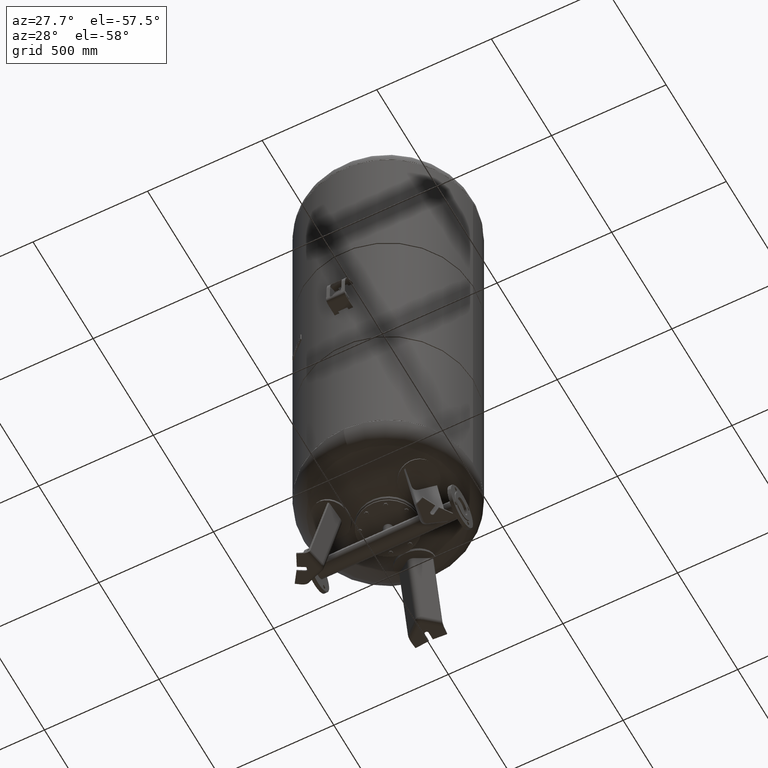
[diagram: clean part render]
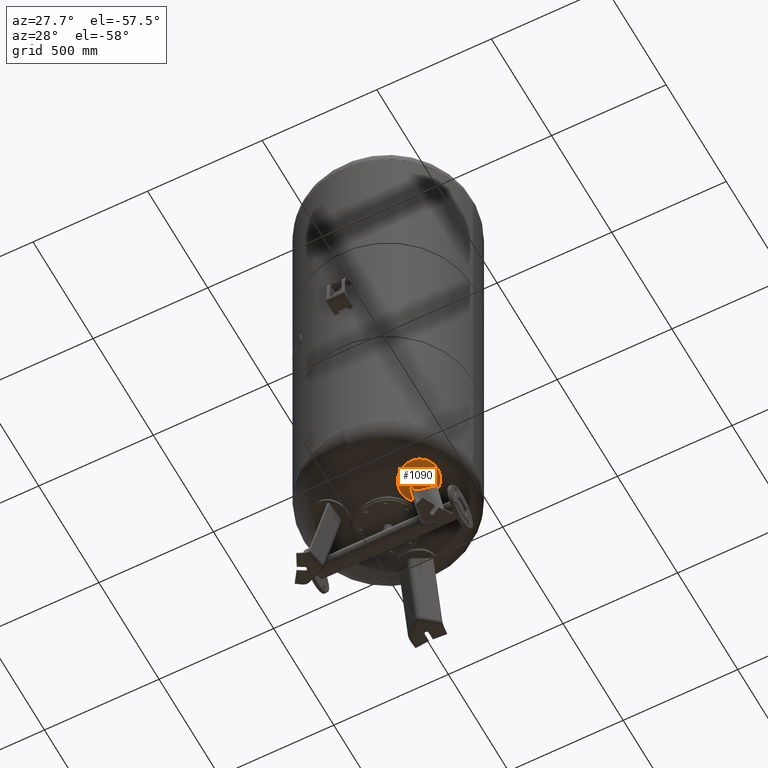
[diagram: same view with one face highlighted and labeled with its STEP entity id]
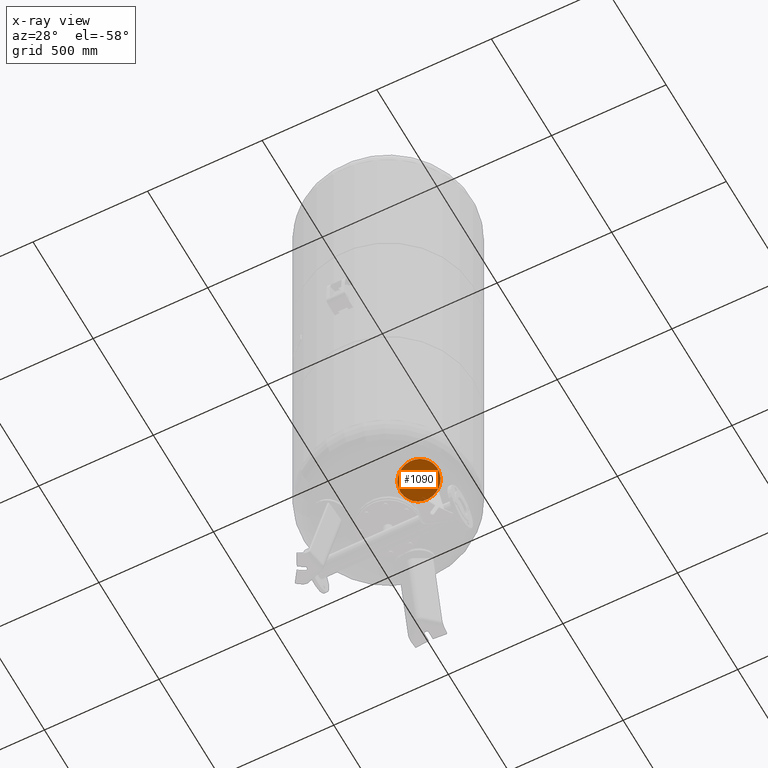
[diagram: x-ray of the same camera — body ghosted, the highlighted face saturated]
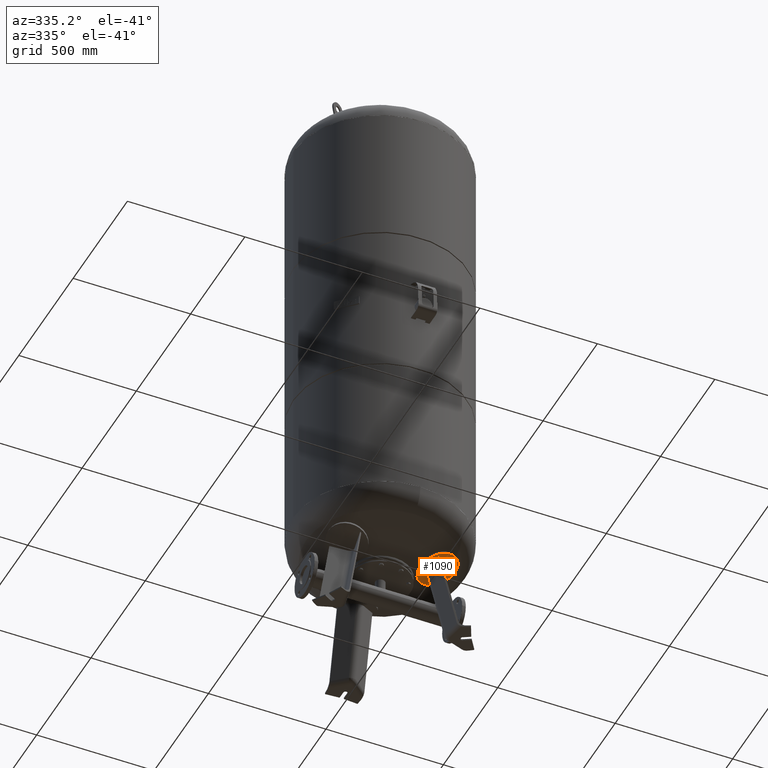
[diagram: same view with one face highlighted and labeled with its STEP entity id]
A machine part, auxiliary view. The second image highlights one B-rep face of the part: STEP entity #1090.
The next image is the same camera in x-ray: the body ghosted, the highlighted face saturated — about 1% of this face is hidden behind the body in this view.
A second angle (auxiliary view) of the same face is appended — the face is thin or edge-on in the first view.
In plain terms, the highlighted spherical surface has radius 594 mm.
Its self-contained STEP definition (entity closure, byte-faithful):
#998=CARTESIAN_POINT('',(261.389877286085610,-150.913516195399100,393.757372581269070));
#999=VERTEX_POINT('',#998);
#1008=CARTESIAN_POINT('',(123.944135096262780,-71.559179943136854,332.834821158567990));
#1009=VERTEX_POINT('',#1008);
#1010=CARTESIAN_POINT('',(192.667006191174180,-111.236348069267990,363.296096869918470));
#1011=DIRECTION('',(0.310355748208370,-0.179183974772650,-0.933580426497202));
#1012=DIRECTION('',(0.808504365822487,-0.466790213248602,0.358367949545300));
#1013=AXIS2_PLACEMENT_3D('',#1010,#1011,#1012);
#1014=CIRCLE('',#1013,85.0);
#1015=EDGE_CURVE('',#1009,#999,#1014,.T.);
#1071=CARTESIAN_POINT('',(192.667006191174180,-111.236348069267990,363.296096869918470));
#1072=DIRECTION('',(0.310355748208370,-0.179183974772650,-0.933580426497202));
#1073=DIRECTION('',(0.808504365822487,-0.466790213248602,0.358367949545300));
#1074=AXIS2_PLACEMENT_3D('',#1071,#1072,#1073);
#1075=CIRCLE('',#1074,85.0);
#1076=EDGE_CURVE('',#999,#1009,#1075,.T.);
#1081=CARTESIAN_POINT('',(10.212929378063222,-5.896437706473620,912.135793993800230));
#1082=DIRECTION('',(-0.500000000000001,-0.866025403784438,-1.554724E-016));
#1083=DIRECTION('',(0.808504365822487,-0.466790213248602,0.358367949545300));
#1084=AXIS2_PLACEMENT_3D('',#1081,#1082,#1083);
#1085=SPHERICAL_SURFACE('',#1084,594.0);
#1086=ORIENTED_EDGE('',*,*,#1076,.T.);
#1087=ORIENTED_EDGE('',*,*,#1015,.T.);
#1088=EDGE_LOOP('',(#1086,#1087));
#1089=FACE_OUTER_BOUND('',#1088,.T.);
#1090=ADVANCED_FACE('',(#1089),#1085,.T.);